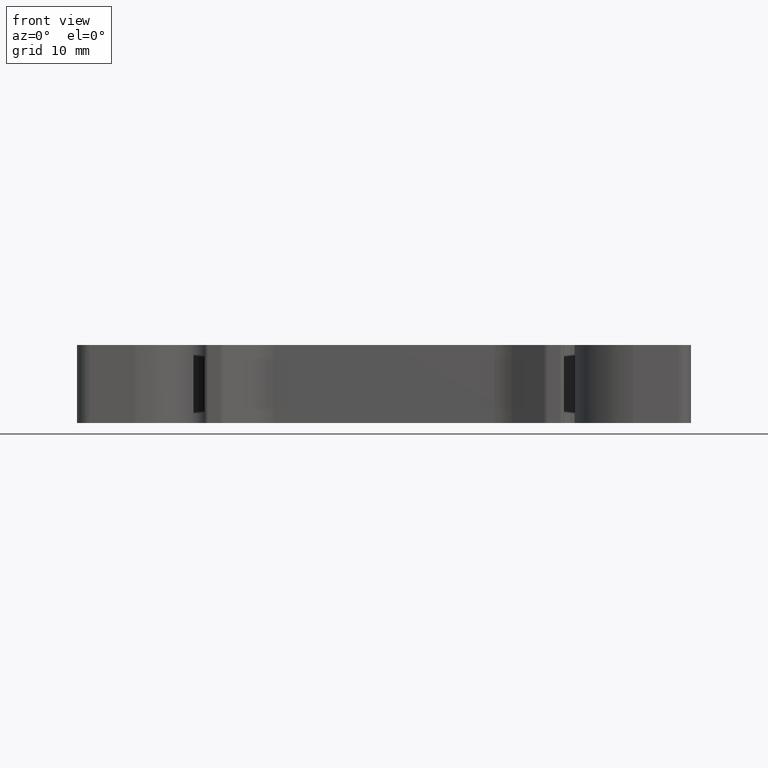
[diagram: clean part render]
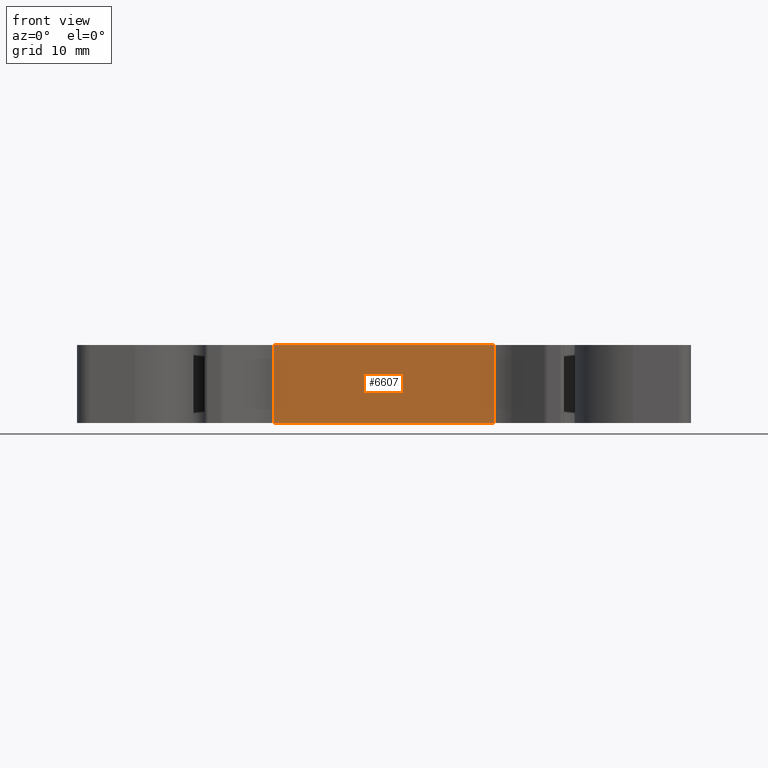
[diagram: same view with one face highlighted and labeled with its STEP entity id]
A machine part, front view. The second image highlights one B-rep face of the part: STEP entity #6607.
In plain terms, the highlighted planar face has unit normal (0, -1, -0).
Its self-contained STEP definition (entity closure, byte-faithful):
#223 = AXIS2_PLACEMENT_3D ( 'NONE', #8816, #8890, #8904 ) ;
#3602 = VECTOR ( 'NONE', #11303, 1000.000000000000000 ) ;
#3627 = VECTOR ( 'NONE', #11219, 1000.000000000000000 ) ;
#3635 = VECTOR ( 'NONE', #11147, 1000.000000000000000 ) ;
#3639 = VECTOR ( 'NONE', #11256, 1000.000000000000000 ) ;
#4660 = EDGE_LOOP ( 'NONE', ( #9998, #10026, #10015, #9996 ) ) ;
#5028 = EDGE_CURVE ( 'NONE', #10665, #10668, #11124, .T. ) ;
#5061 = EDGE_CURVE ( 'NONE', #10647, #10601, #11245, .T. ) ;
#5073 = EDGE_CURVE ( 'NONE', #10647, #10665, #11232, .T. ) ;
#5103 = EDGE_CURVE ( 'NONE', #10601, #10668, #11272, .T. ) ;
#6607 = ADVANCED_FACE ( 'NONE', ( #8810 ), #8815, .T. ) ;
#7841 = CARTESIAN_POINT ( 'NONE',  ( 1943.734418920105100, 495.2674875439330400, -3.299999999999999800 ) ) ;
#7907 = CARTESIAN_POINT ( 'NONE',  ( 1925.005411333645000, 495.2674875439330400, 3.299999999999997200 ) ) ;
#7917 = CARTESIAN_POINT ( 'NONE',  ( 1925.005411333645000, 495.2674875439333300, -3.299999999999999800 ) ) ;
#7957 = CARTESIAN_POINT ( 'NONE',  ( 1943.734418920105100, 495.2674875439333300, 3.299999999999997200 ) ) ;
#8810 = FACE_OUTER_BOUND ( 'NONE', #4660, .T. ) ;
#8815 = PLANE ( 'NONE',  #223 ) ;
#8816 = CARTESIAN_POINT ( 'NONE',  ( 1943.734418920105100, 495.2674875439330400, 64.80301117275325900 ) ) ;
#8890 = DIRECTION ( 'NONE',  ( 0.0000000000000000000, -1.000000000000000000, -0.0000000000000000000 ) ) ;
#8904 = DIRECTION ( 'NONE',  ( 0.0000000000000000000, 0.0000000000000000000, -1.000000000000000000 ) ) ;
#9996 = ORIENTED_EDGE ( 'NONE', *, *, #5103, .F. ) ;
#9998 = ORIENTED_EDGE ( 'NONE', *, *, #5061, .F. ) ;
#10015 = ORIENTED_EDGE ( 'NONE', *, *, #5028, .T. ) ;
#10026 = ORIENTED_EDGE ( 'NONE', *, *, #5073, .T. ) ;
#10601 = VERTEX_POINT ( 'NONE', #7841 ) ;
#10647 = VERTEX_POINT ( 'NONE', #7957 ) ;
#10665 = VERTEX_POINT ( 'NONE', #7907 ) ;
#10668 = VERTEX_POINT ( 'NONE', #7917 ) ;
#11124 = LINE ( 'NONE', #11131, #3635 ) ;
#11131 = CARTESIAN_POINT ( 'NONE',  ( 1925.005411333645000, 495.2674875439333300, 64.80301117275325900 ) ) ;
#11147 = DIRECTION ( 'NONE',  ( 0.0000000000000000000, 0.0000000000000000000, -1.000000000000000000 ) ) ;
#11219 = DIRECTION ( 'NONE',  ( -1.000000000000000000, 0.0000000000000000000, 0.0000000000000000000 ) ) ;
#11226 = CARTESIAN_POINT ( 'NONE',  ( 1943.734418920105100, 495.2674875439330400, 3.299999999999997200 ) ) ;
#11230 = CARTESIAN_POINT ( 'NONE',  ( 1943.734418920105100, 495.2674875439330400, 64.80301117275325900 ) ) ;
#11232 = LINE ( 'NONE', #11226, #3627 ) ;
#11245 = LINE ( 'NONE', #11230, #3639 ) ;
#11256 = DIRECTION ( 'NONE',  ( 0.0000000000000000000, 0.0000000000000000000, -1.000000000000000000 ) ) ;
#11264 = CARTESIAN_POINT ( 'NONE',  ( 1943.734418920105100, 495.2674875439330400, -3.299999999999999800 ) ) ;
#11272 = LINE ( 'NONE', #11264, #3602 ) ;
#11303 = DIRECTION ( 'NONE',  ( -1.000000000000000000, 0.0000000000000000000, 0.0000000000000000000 ) ) ;